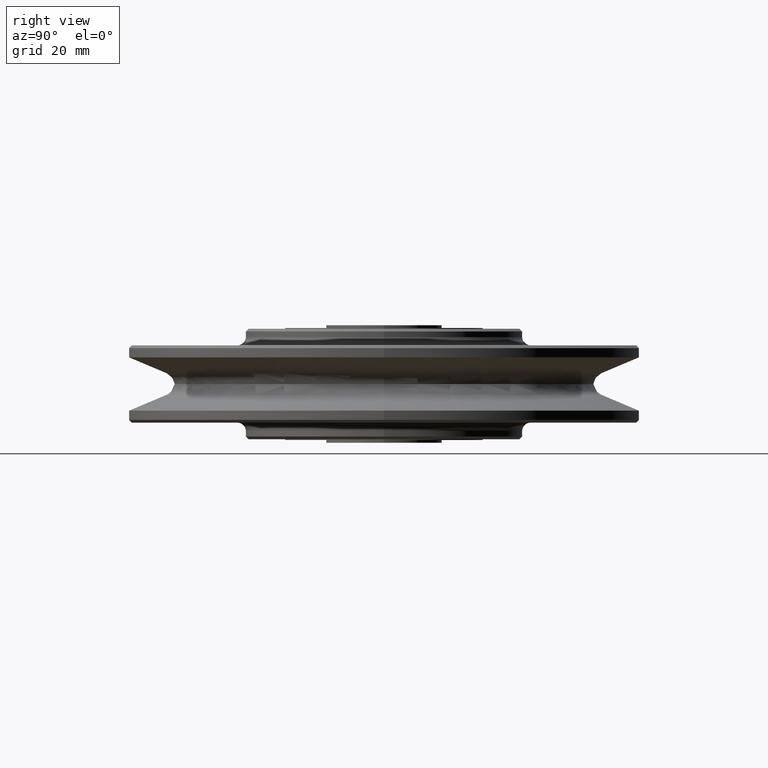
[diagram: clean part render]
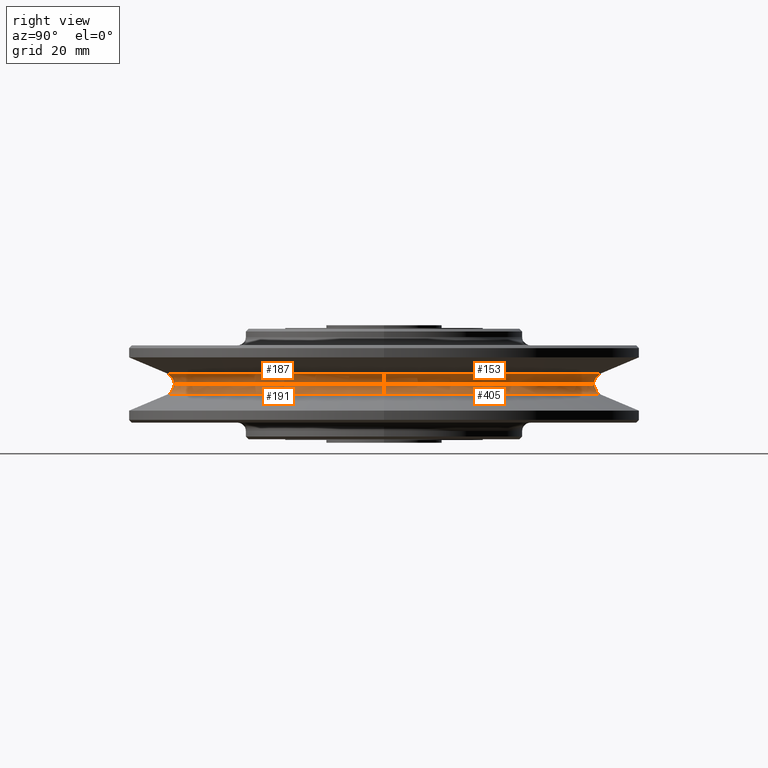
[diagram: same view with one multi-face feature highlighted, each face labeled with its STEP entity id]
A machine part, right view. The highlighted faces form ONE feature: a constant-radius fillet chain: 4 tangent blend faces with common blend radius 4.2 mm. The faces share edges in the B-rep.
Their STEP definitions:
[1] entity #405 (Torus):
#405=ADVANCED_FACE('',(#831),#832,.F.);
#831=FACE_OUTER_BOUND('',#1249,.T.);
#832=TOROIDAL_SURFACE('',#1250,80.1999996875,4.1999996875);
#1249=EDGE_LOOP('',(#2545,#2546,#2547,#2548));
#1250=AXIS2_PLACEMENT_3D('',#2549,#2550,#2551);
#2545=ORIENTED_EDGE('',*,*,#2562,.T.);
#2546=ORIENTED_EDGE('',*,*,#2654,.T.);
#2547=ORIENTED_EDGE('',*,*,#2659,.T.);
#2548=ORIENTED_EDGE('',*,*,#2652,.T.);
#2549=CARTESIAN_POINT('',(0.0,0.0,0.0));
#2550=DIRECTION('',(0.0,0.0,1.0));
#2551=DIRECTION('',(1.0,0.0,0.0));
#2562=EDGE_CURVE('',#3087,#3088,#3089,.T.);
#2652=EDGE_CURVE('',#3243,#3087,#3244,.T.);
#2654=EDGE_CURVE('',#3088,#3245,#3247,.T.);
#2659=EDGE_CURVE('',#3245,#3243,#3254,.T.);
#3087=VERTEX_POINT('',#3878);
#3088=VERTEX_POINT('',#3879);
#3089=CIRCLE('',#3880,76.0);
#3243=VERTEX_POINT('',#5100);
#3244=CIRCLE('',#5101,4.1999996875);
#3245=VERTEX_POINT('',#5102);
#3247=CIRCLE('',#5104,4.1999996875);
#3254=CIRCLE('',#5113,78.59273);
#3878=CARTESIAN_POINT('',(-76.0,7.9491957068746E-015,5.14351617371675E-016));
#3879=CARTESIAN_POINT('',(76.0,-7.9491957068746E-015,5.14351617371675E-016));
#3880=AXIS2_PLACEMENT_3D('',#8510,#8511,#8512);
#5100=CARTESIAN_POINT('',(-78.59273,9.62483352307521E-015,-3.880294));
#5101=AXIS2_PLACEMENT_3D('',#8635,#8636,#8637);
#5102=CARTESIAN_POINT('',(78.59273,0.0,-3.880294));
#5104=AXIS2_PLACEMENT_3D('',#8641,#8642,#8643);
#5113=AXIS2_PLACEMENT_3D('',#8649,#8650,#8651);
#8510=CARTESIAN_POINT('',(0.0,0.0,5.14351617371675E-016));
#8511=DIRECTION('',(-0.0,0.0,-1.0));
#8512=DIRECTION('',(-1.0,0.0,0.0));
#8635=CARTESIAN_POINT('',(-80.1999996875,9.82166729089156E-015,0.0));
#8636=DIRECTION('',(-1.22464679914735E-016,-1.0,0.0));
#8637=DIRECTION('',(-1.0,1.22464679914735E-016,-0.0));
#8641=CARTESIAN_POINT('',(80.1999996875,-9.82166729089156E-015,0.0));
#8642=DIRECTION('',(-1.22464679914735E-016,-1.0,0.0));
#8643=DIRECTION('',(1.0,-1.22464679914735E-016,0.0));
#8649=CARTESIAN_POINT('',(0.0,0.0,-3.880294));
#8650=DIRECTION('',(0.0,0.0,1.0));
#8651=DIRECTION('',(1.0,0.0,0.0));
[2] entity #191 (Torus):
#191=ADVANCED_FACE('',(#484),#485,.F.);
#484=FACE_OUTER_BOUND('',#902,.T.);
#485=TOROIDAL_SURFACE('',#903,80.1999996875,4.1999996875);
#902=EDGE_LOOP('',(#1409,#1410,#1411,#1412));
#903=AXIS2_PLACEMENT_3D('',#1413,#1414,#1415);
#1409=ORIENTED_EDGE('',*,*,#2645,.T.);
#1410=ORIENTED_EDGE('',*,*,#2652,.F.);
#1411=ORIENTED_EDGE('',*,*,#2653,.T.);
#1412=ORIENTED_EDGE('',*,*,#2654,.F.);
#1413=CARTESIAN_POINT('',(0.0,0.0,0.0));
#1414=DIRECTION('',(0.0,0.0,1.0));
#1415=DIRECTION('',(1.0,0.0,0.0));
#2645=EDGE_CURVE('',#3088,#3087,#3234,.T.);
#2652=EDGE_CURVE('',#3243,#3087,#3244,.T.);
#2653=EDGE_CURVE('',#3243,#3245,#3246,.T.);
#2654=EDGE_CURVE('',#3088,#3245,#3247,.T.);
#3087=VERTEX_POINT('',#3878);
#3088=VERTEX_POINT('',#3879);
#3234=CIRCLE('',#5089,76.0);
#3243=VERTEX_POINT('',#5100);
#3244=CIRCLE('',#5101,4.1999996875);
#3245=VERTEX_POINT('',#5102);
#3246=CIRCLE('',#5103,78.59273);
#3247=CIRCLE('',#5104,4.1999996875);
#3878=CARTESIAN_POINT('',(-76.0,7.9491957068746E-015,5.14351617371675E-016));
#3879=CARTESIAN_POINT('',(76.0,-7.9491957068746E-015,5.14351617371675E-016));
#5089=AXIS2_PLACEMENT_3D('',#8624,#8625,#8626);
#5100=CARTESIAN_POINT('',(-78.59273,9.62483352307521E-015,-3.880294));
#5101=AXIS2_PLACEMENT_3D('',#8635,#8636,#8637);
#5102=CARTESIAN_POINT('',(78.59273,0.0,-3.880294));
#5103=AXIS2_PLACEMENT_3D('',#8638,#8639,#8640);
#5104=AXIS2_PLACEMENT_3D('',#8641,#8642,#8643);
#8624=CARTESIAN_POINT('',(0.0,0.0,5.14351617371675E-016));
#8625=DIRECTION('',(-0.0,0.0,-1.0));
#8626=DIRECTION('',(-1.0,0.0,0.0));
#8635=CARTESIAN_POINT('',(-80.1999996875,9.82166729089156E-015,0.0));
#8636=DIRECTION('',(-1.22464679914735E-016,-1.0,0.0));
#8637=DIRECTION('',(-1.0,1.22464679914735E-016,-0.0));
#8638=CARTESIAN_POINT('',(0.0,0.0,-3.880294));
#8639=DIRECTION('',(0.0,0.0,1.0));
#8640=DIRECTION('',(1.0,0.0,0.0));
#8641=CARTESIAN_POINT('',(80.1999996875,-9.82166729089156E-015,0.0));
#8642=DIRECTION('',(-1.22464679914735E-016,-1.0,0.0));
#8643=DIRECTION('',(1.0,-1.22464679914735E-016,0.0));
[3] entity #187 (Torus):
#187=ADVANCED_FACE('',(#478),#479,.F.);
#478=FACE_OUTER_BOUND('',#896,.T.);
#479=TOROIDAL_SURFACE('',#897,80.1999996875,4.1999996875);
#896=EDGE_LOOP('',(#1393,#1394,#1395,#1396));
#897=AXIS2_PLACEMENT_3D('',#1397,#1398,#1399);
#1393=ORIENTED_EDGE('',*,*,#2645,.F.);
#1394=ORIENTED_EDGE('',*,*,#2565,.F.);
#1395=ORIENTED_EDGE('',*,*,#2646,.F.);
#1396=ORIENTED_EDGE('',*,*,#2563,.F.);
#1397=CARTESIAN_POINT('',(0.0,0.0,0.0));
#1398=DIRECTION('',(0.0,0.0,1.0));
#1399=DIRECTION('',(1.0,0.0,0.0));
#2563=EDGE_CURVE('',#3087,#3090,#3091,.T.);
#2565=EDGE_CURVE('',#3092,#3088,#3094,.T.);
#2645=EDGE_CURVE('',#3088,#3087,#3234,.T.);
#2646=EDGE_CURVE('',#3090,#3092,#3235,.T.);
#3087=VERTEX_POINT('',#3878);
#3088=VERTEX_POINT('',#3879);
#3090=VERTEX_POINT('',#3881);
#3091=CIRCLE('',#3882,4.1999996875);
#3092=VERTEX_POINT('',#3883);
#3094=CIRCLE('',#3885,4.1999996875);
#3234=CIRCLE('',#5089,76.0);
#3235=CIRCLE('',#5090,78.59273);
#3878=CARTESIAN_POINT('',(-76.0,7.9491957068746E-015,5.14351617371675E-016));
#3879=CARTESIAN_POINT('',(76.0,-7.9491957068746E-015,5.14351617371675E-016));
#3881=CARTESIAN_POINT('',(-78.59273,9.62483352307521E-015,3.880294));
#3882=AXIS2_PLACEMENT_3D('',#8513,#8514,#8515);
#3883=CARTESIAN_POINT('',(78.59273,0.0,3.880294));
#3885=AXIS2_PLACEMENT_3D('',#8519,#8520,#8521);
#5089=AXIS2_PLACEMENT_3D('',#8624,#8625,#8626);
#5090=AXIS2_PLACEMENT_3D('',#8627,#8628,#8629);
#8513=CARTESIAN_POINT('',(-80.1999996875,9.82166729089156E-015,0.0));
#8514=DIRECTION('',(-1.22464679914735E-016,-1.0,0.0));
#8515=DIRECTION('',(-1.0,1.22464679914735E-016,-0.0));
#8519=CARTESIAN_POINT('',(80.1999996875,-9.82166729089156E-015,0.0));
#8520=DIRECTION('',(-1.22464679914735E-016,-1.0,0.0));
#8521=DIRECTION('',(1.0,-1.22464679914735E-016,0.0));
#8624=CARTESIAN_POINT('',(0.0,0.0,5.14351617371675E-016));
#8625=DIRECTION('',(-0.0,0.0,-1.0));
#8626=DIRECTION('',(-1.0,0.0,0.0));
#8627=CARTESIAN_POINT('',(0.0,0.0,3.880294));
#8628=DIRECTION('',(0.0,0.0,1.0));
#8629=DIRECTION('',(1.0,0.0,0.0));
[4] entity #153 (Torus):
#153=ADVANCED_FACE('',(#427),#428,.F.);
#427=FACE_OUTER_BOUND('',#845,.T.);
#428=TOROIDAL_SURFACE('',#846,80.1999996875,4.1999996875);
#845=EDGE_LOOP('',(#1257,#1258,#1259,#1260));
#846=AXIS2_PLACEMENT_3D('',#1261,#1262,#1263);
#1257=ORIENTED_EDGE('',*,*,#2562,.F.);
#1258=ORIENTED_EDGE('',*,*,#2563,.T.);
#1259=ORIENTED_EDGE('',*,*,#2564,.F.);
#1260=ORIENTED_EDGE('',*,*,#2565,.T.);
#1261=CARTESIAN_POINT('',(0.0,0.0,0.0));
#1262=DIRECTION('',(0.0,0.0,1.0));
#1263=DIRECTION('',(1.0,0.0,0.0));
#2562=EDGE_CURVE('',#3087,#3088,#3089,.T.);
#2563=EDGE_CURVE('',#3087,#3090,#3091,.T.);
#2564=EDGE_CURVE('',#3092,#3090,#3093,.T.);
#2565=EDGE_CURVE('',#3092,#3088,#3094,.T.);
#3087=VERTEX_POINT('',#3878);
#3088=VERTEX_POINT('',#3879);
#3089=CIRCLE('',#3880,76.0);
#3090=VERTEX_POINT('',#3881);
#3091=CIRCLE('',#3882,4.1999996875);
#3092=VERTEX_POINT('',#3883);
#3093=CIRCLE('',#3884,78.59273);
#3094=CIRCLE('',#3885,4.1999996875);
#3878=CARTESIAN_POINT('',(-76.0,7.9491957068746E-015,5.14351617371675E-016));
#3879=CARTESIAN_POINT('',(76.0,-7.9491957068746E-015,5.14351617371675E-016));
#3880=AXIS2_PLACEMENT_3D('',#8510,#8511,#8512);
#3881=CARTESIAN_POINT('',(-78.59273,9.62483352307521E-015,3.880294));
#3882=AXIS2_PLACEMENT_3D('',#8513,#8514,#8515);
#3883=CARTESIAN_POINT('',(78.59273,0.0,3.880294));
#3884=AXIS2_PLACEMENT_3D('',#8516,#8517,#8518);
#3885=AXIS2_PLACEMENT_3D('',#8519,#8520,#8521);
#8510=CARTESIAN_POINT('',(0.0,0.0,5.14351617371675E-016));
#8511=DIRECTION('',(-0.0,0.0,-1.0));
#8512=DIRECTION('',(-1.0,0.0,0.0));
#8513=CARTESIAN_POINT('',(-80.1999996875,9.82166729089156E-015,0.0));
#8514=DIRECTION('',(-1.22464679914735E-016,-1.0,0.0));
#8515=DIRECTION('',(-1.0,1.22464679914735E-016,-0.0));
#8516=CARTESIAN_POINT('',(0.0,0.0,3.880294));
#8517=DIRECTION('',(0.0,0.0,1.0));
#8518=DIRECTION('',(1.0,0.0,0.0));
#8519=CARTESIAN_POINT('',(80.1999996875,-9.82166729089156E-015,0.0));
#8520=DIRECTION('',(-1.22464679914735E-016,-1.0,0.0));
#8521=DIRECTION('',(1.0,-1.22464679914735E-016,0.0));